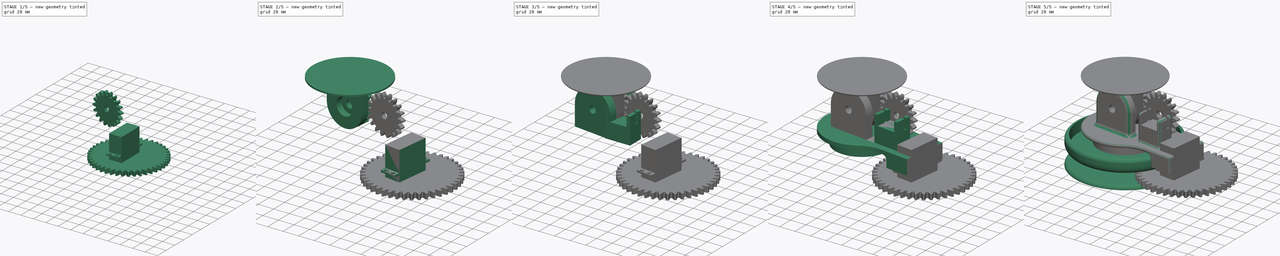
[diagram: build sequence overview — one tinted view per stage of 5, left to right]
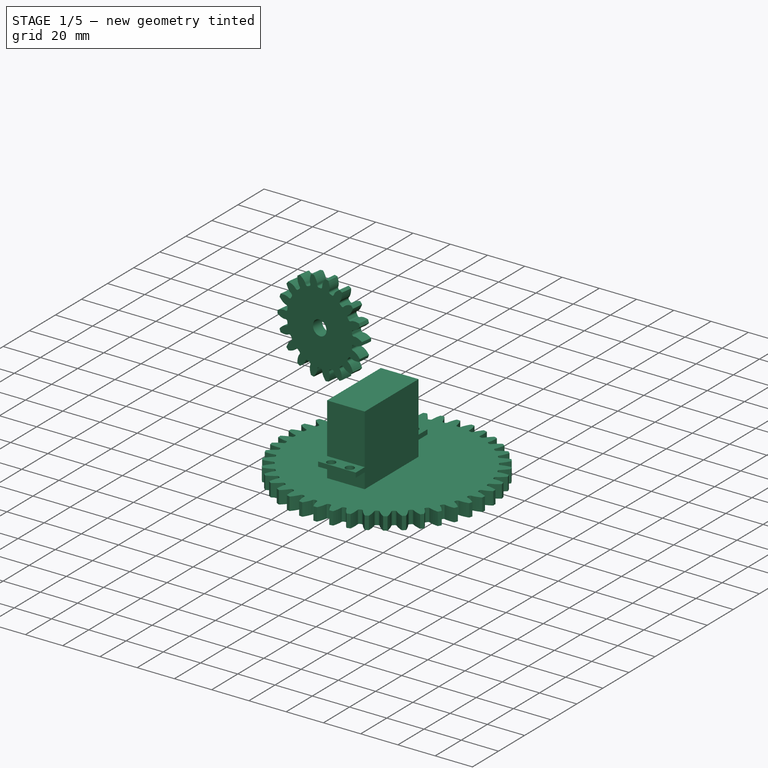
[diagram: stage 1 of 5 — iso view after this stage's code; geometry added in this stage tinted green]
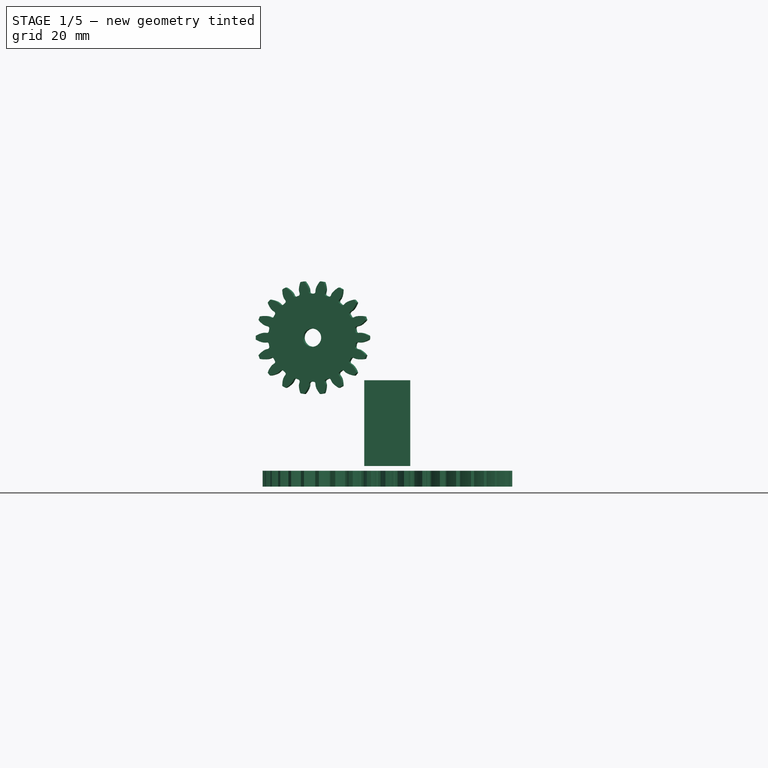
[diagram: stage 1 of 5 — front view after this stage's code; geometry added in this stage tinted green]
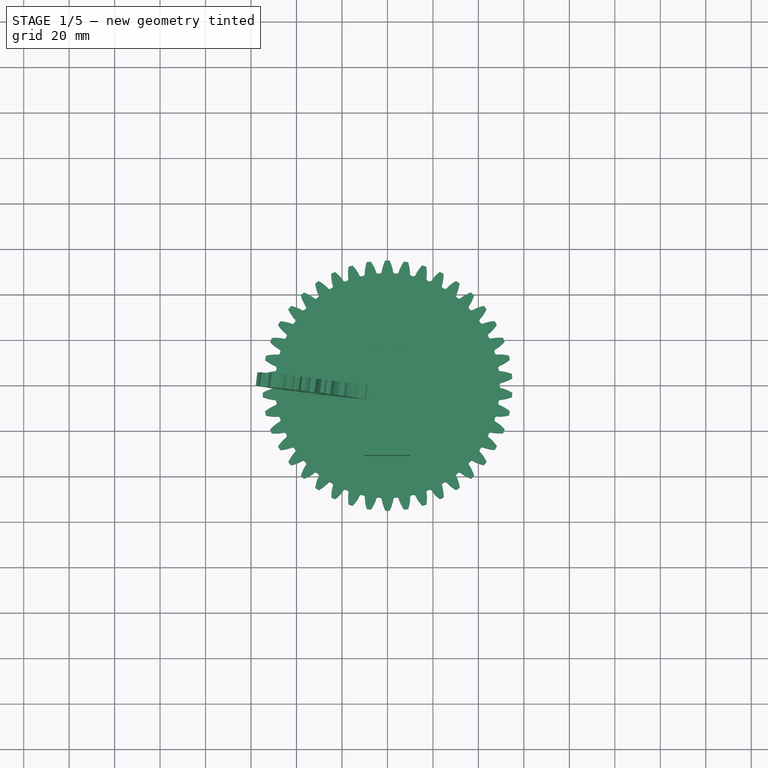
[diagram: stage 1 of 5 — top view after this stage's code; geometry added in this stage tinted green]
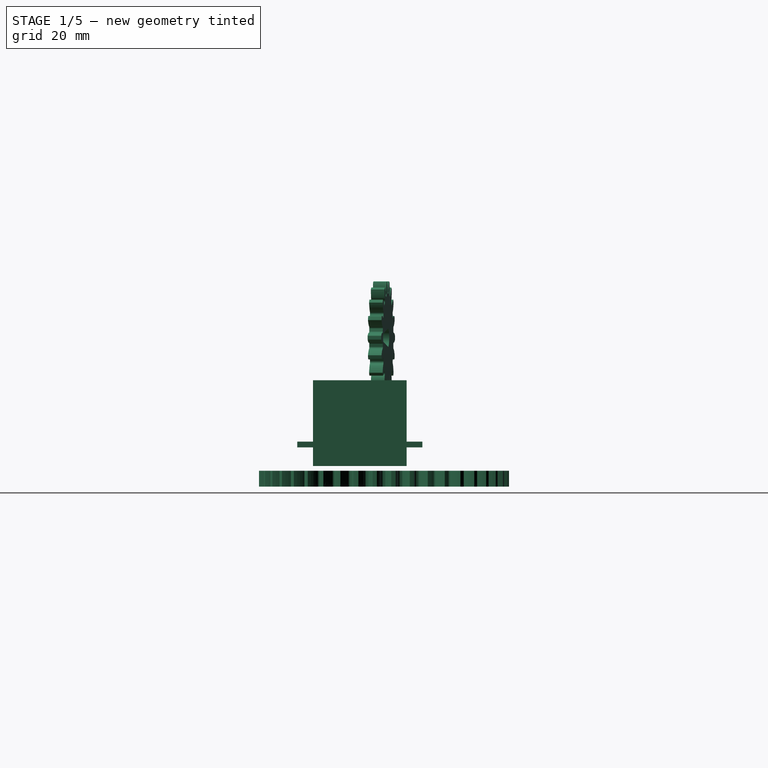
[diagram: stage 1 of 5 — right view after this stage's code; geometry added in this stage tinted green]
FCSTD DOCUMENT  (FreeCAD 0.18R14555 (Git shallow))
Label: system3
License: All rights reserved
LicenseURL: http://en.wikipedia.org/wiki/All_rights_reserved
objects: Part::Cylinder×15, Part::MultiFuse×11, PartDesign::Fillet×11, Part::Box×10, Part::Cut×8, Part::Extrusion×7, Part::Part2DObjectPython×4, Sketcher::SketchObject×4, PartDesign::FeatureBase×3, PartDesign::Body×3, App::DocumentObjectGroup×3, Part::Revolution×1, Part::FeaturePython×1, Part::Feature×1, Part::Mirroring×1, PartDesign::Boolean×1
note: 81 computed .brp shape members not serialized (recipe doc carries the construction recipe); baked Part::Feature solids carry a one-line shape summary decoded from their .brp

FEATURE [Part::Part2DObjectPython] InvoluteGear003  # Draft 2D object (typed FeaturePython)
  ExternalGear = true
  HighPrecision = true
  Modules = 2.5
  NumberOfTeeth = 42
  PressureAngle = 20
FEATURE [Part::Extrusion] Extrude001
  Base = -> InvoluteGear003
  Dir = (0,0,1)
  DirMode = 2
  FaceMakerClass = Part::FaceMakerBullseye
  LengthFwd = 7
  LengthRev = 0
  Placement = pos=(79.5,0,38) rot=(0,0,1;0.074176rad)
  Solid = true
  Symmetric = false
FEATURE [Part::Cylinder] Cylinder008
  Angle = 360
  AttacherType = Attacher::AttachEngine3D
  Height = 10
  Placement = pos=(79.5,0,36.5) rot=(0,0,1;0rad)
  Radius = 5
FEATURE [Sketcher::SketchObject] Sketch001
  MapMode = 5
  Placement = pos=(79.5,9e-16,45) rot=(0,0,1;0.074176rad)
  Support = -> [Extrude001]
  sketch-geometry (4):
    g0: LineSegment StartX=3.71406e-11 StartY=-7 StartZ=0 EndX=30 EndY=-3.5 EndZ=0
    g1: LineSegment StartX=3.71438e-11 StartY=7 StartZ=0 EndX=30 EndY=3.5 EndZ=0
    g2: ArcOfCircle CenterX=0 CenterY=0 CenterZ=0 NormalX=0 NormalY=0 NormalZ=1 AngleXU=0 Radius=7 StartAngle=1.5708 EndAngle=4.71239
    g3: ArcOfCircle CenterX=30 CenterY=0 CenterZ=0 NormalX=0 NormalY=0 NormalZ=1 AngleXU=0 Radius=3.5 StartAngle=4.71239 EndAngle=7.85398
  constraints (13):
    c: Coincident(g2,g-1)
    c: Coincident(g2,g0)
    c: Coincident(g2,g1)
    c: PointOnObject(g3,g-1)
    c: Coincident(g3,g1)
    c: Coincident(g3,g0)
    c: DistanceX(g3,g0) = 0
    c: DistanceX(g1,g3) = 0
    c: DistanceX(g2,g1) = 0
    c: DistanceX(g2,g0) = 0
    c: DistanceY(g0,g1) = 14
    c: DistanceY(g0,g1) = 7
    c: DistanceX(g2,g3) = 30
FEATURE [Part::Cut] Cut001
  Base = -> Extrude001
  Refine = true
  Tool = -> Cylinder008
FEATURE [Part::Extrusion] Extrude002
  Base = -> Sketch001
  Dir = (0,0,1)
  DirMode = 2
  FaceMakerClass = Part::FaceMakerBullseye
  LengthFwd = -3
  LengthRev = 0
  Solid = true
  Symmetric = false
FEATURE [Part::Cut] Cut002  label="Pan_Gear"
  Base = -> Cut001
  Placement = pos=(0.5,0,35.5) rot=(1,0,0;3.14159rad)
  Refine = true
  Tool = -> Extrude002
FEATURE [Part::Cylinder] Cylinder003
  Angle = 360
  AttacherType = Attacher::AttachEngine3D
  Height = 10
  Placement = pos=(0,0,0) rot=(1,0,0;1.5708rad)
  Radius = 2.25
FEATURE [Sketcher::SketchObject] Sketch002
  sketch-geometry (12):
    g0: LineSegment StartX=-59.136 StartY=19.2217 StartZ=0 EndX=-52.236 EndY=19.2217 EndZ=0
    g1: LineSegment StartX=-52.236 StartY=19.2217 StartZ=0 EndX=-52.236 EndY=27.4217 EndZ=0
    g2: LineSegment StartX=-52.236 StartY=27.4217 StartZ=0 EndX=-11.036 EndY=27.4217 EndZ=0
    g3: LineSegment StartX=-11.036 StartY=27.4217 StartZ=0 EndX=-11.036 EndY=19.2217 EndZ=0
    g4: LineSegment StartX=-11.036 StartY=19.2217 StartZ=0 EndX=-4.13598 EndY=19.2217 EndZ=0
    g5: LineSegment StartX=-4.13598 StartY=19.2217 StartZ=0 EndX=-4.13598 EndY=16.7217 EndZ=0
    g6: LineSegment StartX=-4.13598 StartY=16.7217 StartZ=0 EndX=-11.036 EndY=16.7217 EndZ=0
    g7: LineSegment StartX=-11.036 StartY=16.7217 StartZ=0 EndX=-11.036 EndY=-10.2783 EndZ=0
    g8: LineSegment StartX=-11.036 StartY=-10.2783 StartZ=0 EndX=-52.236 EndY=-10.2783 EndZ=0
    g9: LineSegment StartX=-52.236 StartY=-10.2783 StartZ=0 EndX=-52.236 EndY=16.7217 EndZ=0
    g10: LineSegment StartX=-52.236 StartY=16.7217 StartZ=0 EndX=-59.136 EndY=16.7217 EndZ=0
    g11: LineSegment StartX=-59.136 StartY=16.7217 StartZ=0 EndX=-59.136 EndY=19.2217 EndZ=0
  constraints (34):
    c: Horizontal(g0)
    c: Coincident(g0,g1)
    c: Vertical(g1)
    c: Coincident(g1,g2)
    c: Horizontal(g2)
    c: Coincident(g2,g3)
    c: Vertical(g3)
    c: Coincident(g3,g4)
    c: Horizontal(g4)
    c: Coincident(g4,g5)
    c: Vertical(g5)
    c: Coincident(g5,g6)
    c: Coincident(g6,g7)
    c: Vertical(g7)
    c: Coincident(g7,g8)
    c: Coincident(g8,g9)
    c: Coincident(g9,g10)
    c: Horizontal(g10)
    c: Coincident(g10,g11)
    c: Coincident(g11,g0)
    c: Vertical(g11)
    c: Horizontal(g6)
    c: Equal(g0,g10)
    c: Equal(g10,g4)
    c: Equal(g4,g6)
    c: Equal(g5,g11)
    c: Equal(g1,g3)
    c: Equal(g9,g7)
    c: Equal(g2,g8)
    c: DistanceX(g0,g4) = 55
    c: DistanceY(g7,g7) = 27
    c: DistanceY(g5,g5) = 2.5
    c: DistanceY(g7,g2) = 37.7
    c: DistanceX(g8,g8) = 41.2
FEATURE [Part::FeaturePython] Array  # Draft array (typed FeaturePython)
  Angle = 360
  ArrayType = 0
  Axis = (0,0,1)
  Base = -> Cylinder003
  Center = (0,0,0)
  Fuse = false
  IntervalAxis = (0,0,0)
  IntervalX = (49.5,0,0)
  IntervalY = (0,0,0)
  IntervalZ = (0,0,10)
  NumberPolar = 1
  NumberX = 2
  NumberY = 1
  NumberZ = 2
  Placement = pos=(-56.5,22,5) rot=(0,0,1;0rad)
FEATURE [Part::Extrusion] Extrude003
  Base = -> Sketch002
  Dir = (0,0,1)
  DirMode = 2
  FaceMakerClass = Part::FaceMakerBullseye
  LengthFwd = 20.2
  LengthRev = 0
  Solid = true
  Symmetric = false
FEATURE [Part::Cut] Cut004  label="Servo"
  Base = -> Extrude003
  Placement = pos=(90,21,27) rot=(0.57735,0.57735,-0.57735;4.18879rad)
  Refine = true
  Tool = -> Array
FEATURE [Part::Part2DObjectPython] InvoluteGear005  # Draft 2D object (typed FeaturePython)
  ExternalGear = true
  HighPrecision = true
  Modules = 2.5
  NumberOfTeeth = 18
  Placement = pos=(26,4,56) rot=(1,0,0;1.5708rad)
  PressureAngle = 20
FEATURE [Part::Extrusion] Extrude008
  Base = -> InvoluteGear005
  Dir = (0,-1,2e-16)
  DirMode = 2
  FaceMakerClass = Part::FaceMakerBullseye
  LengthFwd = 6
  LengthRev = 0
  Solid = true
  Symmetric = false
FEATURE [Part::Cylinder] Cylinder019
  Angle = 360
  AttacherType = Attacher::AttachEngine3D
  Height = 6
  Placement = pos=(26,4,56) rot=(1,0,0;1.5708rad)
  Radius = 4
FEATURE [Sketcher::SketchObject] Sketch004
  MapMode = 5
  Placement = pos=(26,4,56) rot=(-1,0,0;1.5708rad)
  Support = -> [Cylinder019]
  sketch-geometry (4):
    g0: LineSegment StartX=2e-16 StartY=4 StartZ=0 EndX=16 EndY=2 EndZ=0
    g1: LineSegment StartX=16 StartY=-2 StartZ=0 EndX=0 EndY=-4 EndZ=0
    g2: ArcOfCircle CenterX=16 CenterY=0 CenterZ=0 NormalX=0 NormalY=0 NormalZ=1 AngleXU=0 Radius=2 StartAngle=4.71239 EndAngle=7.85398
    g3: ArcOfCircle CenterX=0 CenterY=0 CenterZ=0 NormalX=0 NormalY=0 NormalZ=1 AngleXU=0 Radius=4 StartAngle=1.5708 EndAngle=4.71239
  constraints (13):
    c: Coincident(g2,g0)
    c: Coincident(g2,g1)
    c: Diameter(g2) = 4
    c: DistanceX(g0,g2) = 0
    c: DistanceX(g2,g1) = 0
    c: Coincident(g3,g-1)
    c: PointOnObject(g3,g-2)
    c: PointOnObject(g3,g-2)
    c: Diameter(g3) = 8
    c: Coincident(g0,g3)
    c: Coincident(g3,g1)
    c: DistanceX(g3,g2) = 16
    c: PointOnObject(g2,g-1)
FEATURE [Part::Extrusion] Extrude007
  Base = -> Sketch004
  Dir = (0,1,-2e-16)
  DirMode = 2
  FaceMakerClass = Part::FaceMakerBullseye
  LengthFwd = -3
  LengthRev = 0
  Solid = true
  Symmetric = false
FEATURE [Part::MultiFuse] Fusion008
  Refine = true
  Shapes = -> [Cylinder019,Extrude007]
FEATURE [Part::Cut] Cut009  label="Tilt_Gear"
  Base = -> Extrude008
  Placement = pos=(21.3,1,0) rot=(0,0,-1;0.122173rad)
  Refine = true
  Tool = -> Fusion008
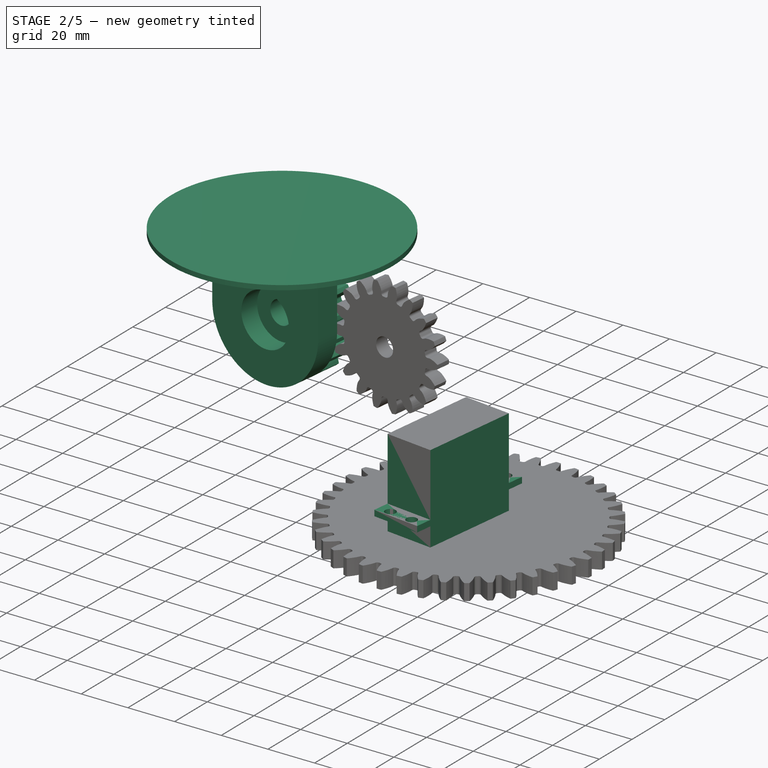
[diagram: stage 2 of 5 — iso view after this stage's code; geometry added in this stage tinted green]
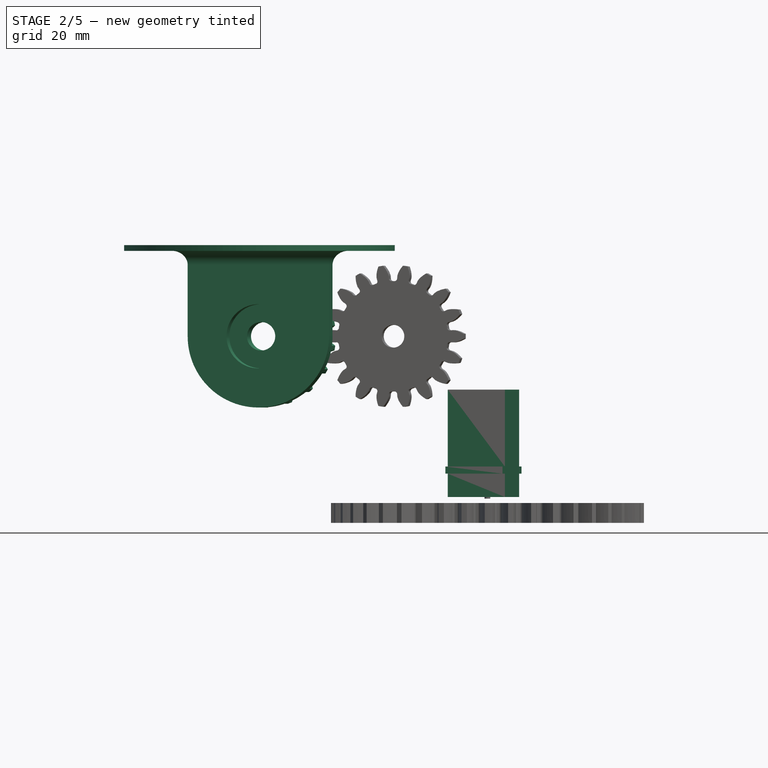
[diagram: stage 2 of 5 — front view after this stage's code; geometry added in this stage tinted green]
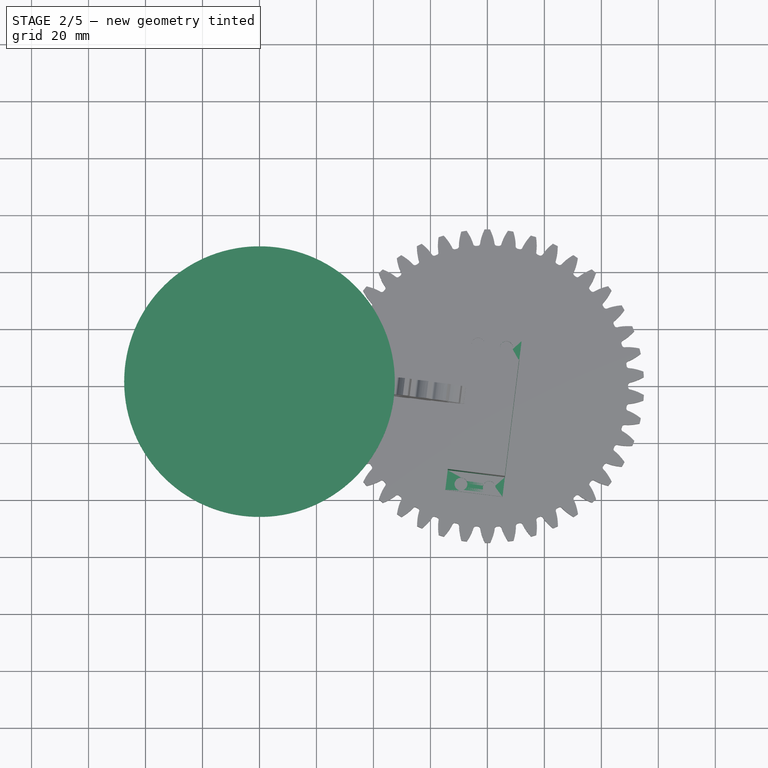
[diagram: stage 2 of 5 — top view after this stage's code; geometry added in this stage tinted green]
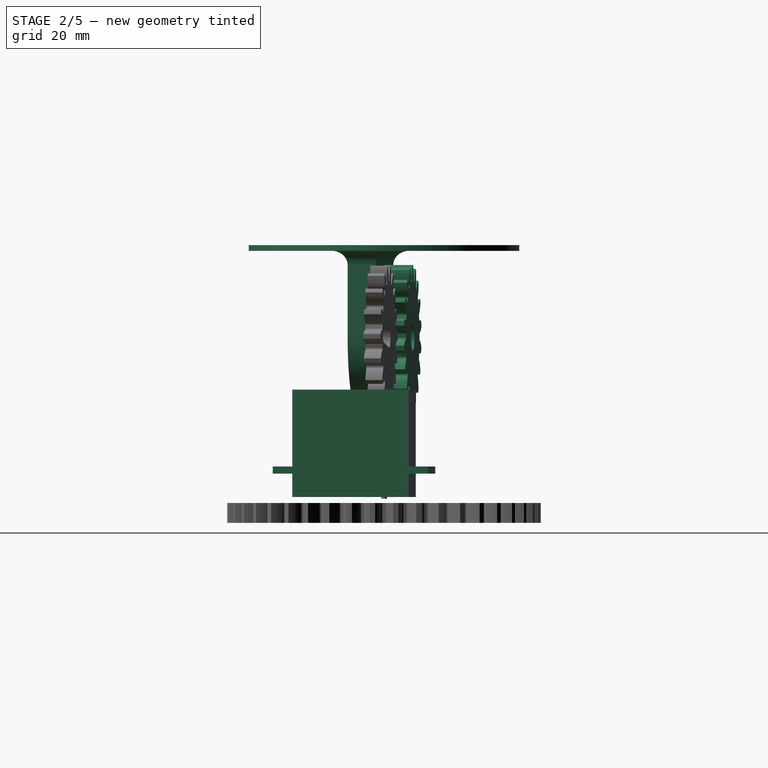
[diagram: stage 2 of 5 — right view after this stage's code; geometry added in this stage tinted green]
FEATURE [PartDesign::Body] Body  label="Base_Body"
  BaseFeature = -> Fusion001
  Group = -> [BaseFeature,Fillet,Fillet001,Fillet002]
  Origin = -> Origin
  Tip = -> Fillet002
FEATURE [Part::Cylinder] Cylinder011
  Angle = 360
  AttacherType = Attacher::AttachEngine3D
  Height = 1
  Placement = pos=(80,0,-1) rot=(0,0,1;0rad)
  Radius = 1
FEATURE [Part::MultiFuse] Fusion002  label="Servo_Pan"
  Placement = pos=(0.6,9.75,0) rot=(0,0,-1;0.122173rad)
  Refine = true
  Shapes = -> [Cut004,Cylinder011]
FEATURE [Part::Part2DObjectPython] InvoluteGear004  # Draft 2D object (typed FeaturePython)
  ExternalGear = true
  HighPrecision = true
  Modules = 2.5
  NumberOfTeeth = 18
  Placement = pos=(26,4,56) rot=(1,0,0;1.5708rad)
  PressureAngle = 20
FEATURE [Part::Extrusion] Extrude006
  Base = -> InvoluteGear004
  Dir = (0,-1,2e-16)
  DirMode = 2
  FaceMakerClass = Part::FaceMakerBullseye
  LengthFwd = 10
  LengthRev = 0
  Placement = pos=(-13.75,8,-3.8) rot=(-0.050849,-0.831372,-0.553385;0.220156rad)
  Solid = true
  Symmetric = false
FEATURE [Part::Cylinder] Cylinder020
  Angle = 360
  AttacherType = Attacher::AttachEngine3D
  Height = 22
  Placement = pos=(2.1,11,56) rot=(0.99628,-0.060935,-0.060935;1.57452rad)
  Radius = 5
FEATURE [Part::Cylinder] Cylinder021
  Angle = 180
  AttacherType = Attacher::AttachEngine3D
  Height = 10
  Placement = pos=(0.824382,0.198572,56.0001) rot=(-0.043208,-0.706446,0.706446;3.05523rad)
  Radius = 25
FEATURE [Part::Box] Box014  label="Cube014"
  AttacherType = Attacher::AttachEngine3D
  Height = 30
  Length = 50
  Placement = pos=(-25.208,-6.68022,56) rot=(0,0,-1;0.122173rad)
  Width = 10
FEATURE [Part::Cylinder] Cylinder022
  Angle = 360
  AttacherType = Attacher::AttachEngine3D
  Height = 9
  Placement = pos=(0.6,-1.5,56) rot=(0.99628,-0.060935,-0.060935;1.57452rad)
  Radius = 11.25
FEATURE [Part::MultiFuse] Fusion012
  Refine = true
  Shapes = -> [Cylinder022,Cylinder020]
FEATURE [Part::MultiFuse] Fusion013
  Refine = true
  Shapes = -> [Box014,Extrude006,Cylinder021]
FEATURE [PartDesign::Body] Body001  label="Middle_Body"
  BaseFeature = -> Fusion016
  Group = -> [BaseFeature001,Fillet003,Fillet004,Fillet005,Fillet006,Fillet007,Fillet008,Boolean]
  Origin = -> Origin001
  Tip = -> Boolean
FEATURE [Part::Cut] Cut010
  Base = -> Fusion013
  Refine = true
  Tool = -> Fusion012
FEATURE [Part::Cylinder] Cylinder023
  Angle = 360
  AttacherType = Attacher::AttachEngine3D
  Height = 2
  Placement = pos=(0,0,86) rot=(0,0,1;0rad)
  Radius = 47.5
FEATURE [Part::MultiFuse] Fusion017  label="Top"
  Refine = true
  Shapes = -> [Cut010,Cylinder023]
FEATURE [PartDesign::FeatureBase] BaseFeature002
  BaseFeature = -> Fusion017
FEATURE [PartDesign::Fillet] Fillet009
  Base = -> BaseFeature002 [Edge7,Edge6,Edge5,Edge4]
  BaseFeature = -> BaseFeature002
  Radius = 4.99
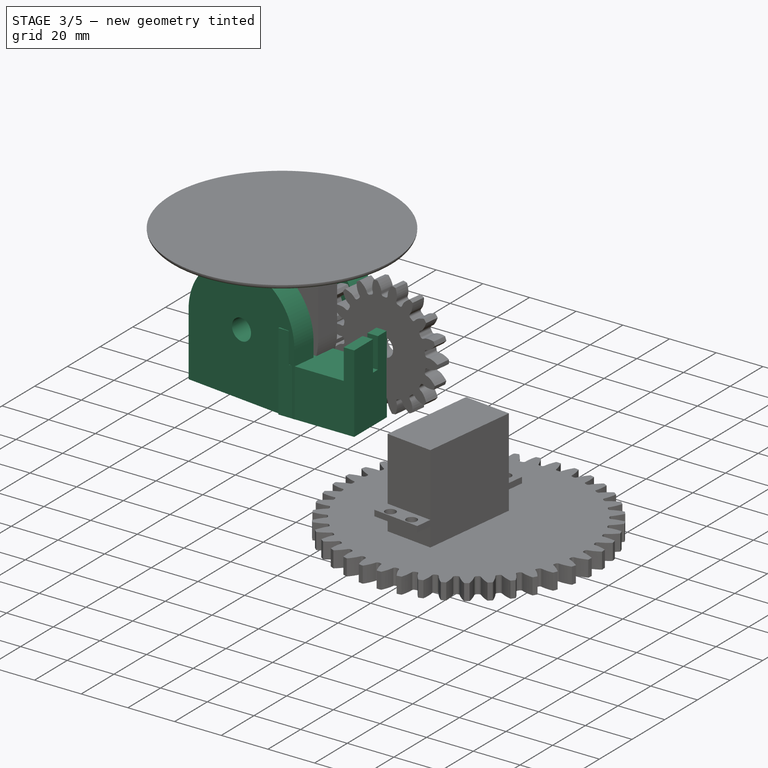
[diagram: stage 3 of 5 — iso view after this stage's code; geometry added in this stage tinted green]
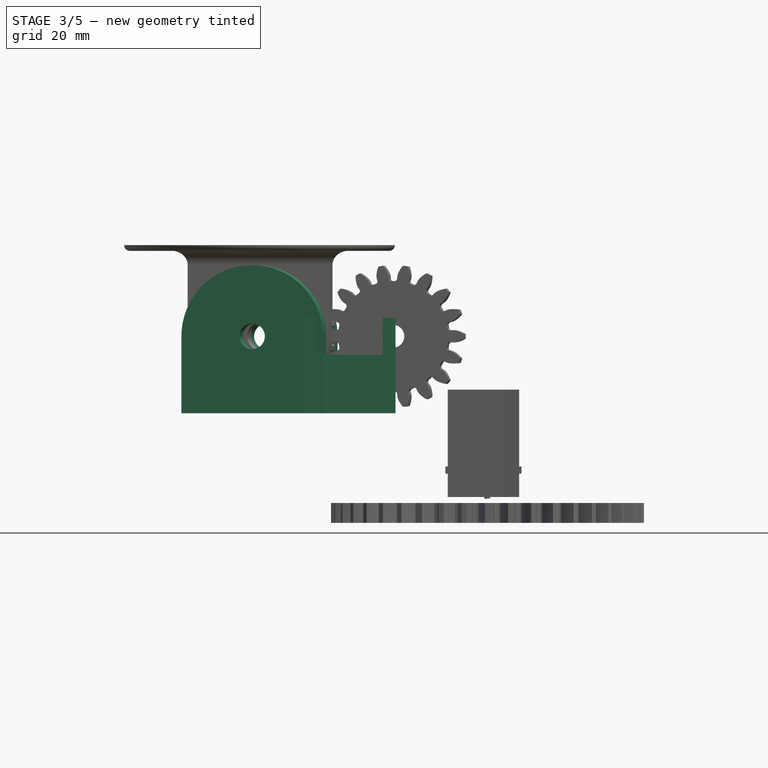
[diagram: stage 3 of 5 — front view after this stage's code; geometry added in this stage tinted green]
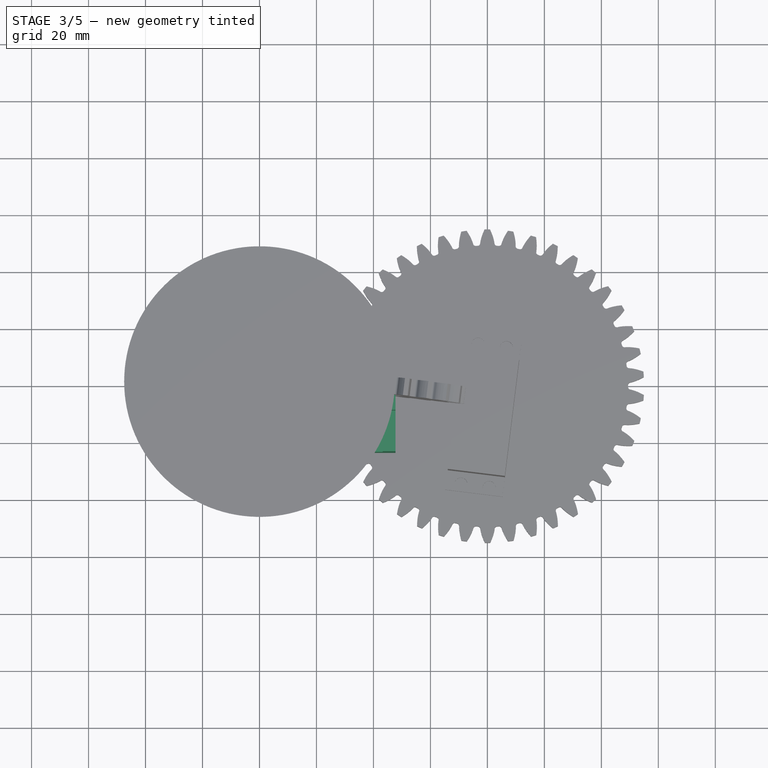
[diagram: stage 3 of 5 — top view after this stage's code; geometry added in this stage tinted green]
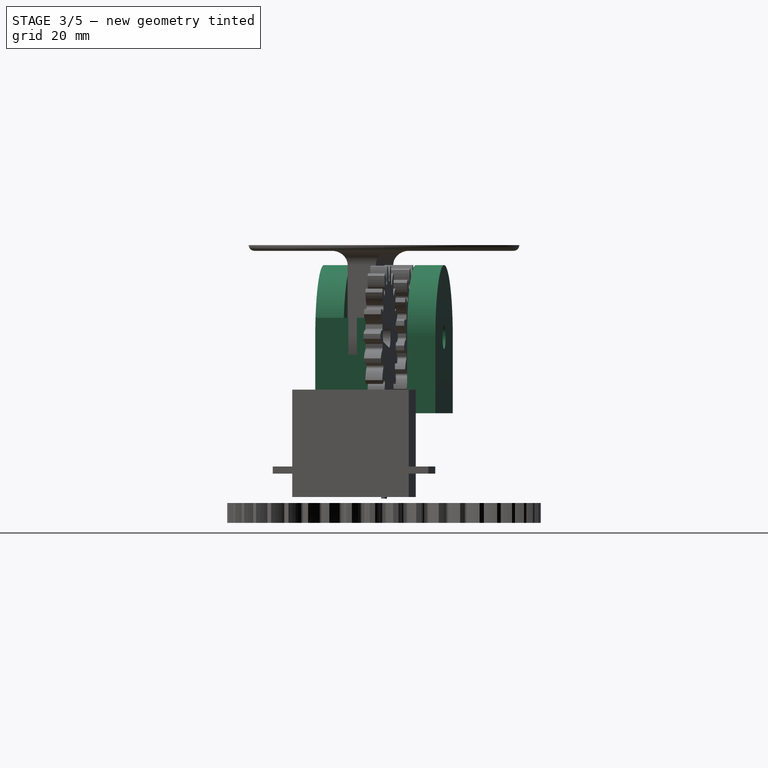
[diagram: stage 3 of 5 — right view after this stage's code; geometry added in this stage tinted green]
FEATURE [Part::Box] Box  label="Cube"
  AttacherType = Attacher::AttachEngine3D
  Height = 27
  Length = 50
  Placement = pos=(-25,-10,29) rot=(0,0,1;0rad)
  Width = 10
FEATURE [Part::Cylinder] Cylinder014
  Angle = 360
  AttacherType = Attacher::AttachEngine3D
  Height = 10
  Placement = pos=(0,0,56) rot=(1,0,0;1.5708rad)
  Radius = 25
FEATURE [Part::Cylinder] Cylinder015
  Angle = 360
  AttacherType = Attacher::AttachEngine3D
  Height = 10
  Placement = pos=(0,0,56) rot=(1,0,0;1.5708rad)
  Radius = 4.5
FEATURE [Part::MultiFuse] Fusion004
  Refine = true
  Shapes = -> [Cylinder014,Box]
FEATURE [Part::Box] Box009  label="Cube009"
  AttacherType = Attacher::AttachEngine3D
  Height = 13
  Length = 4.5
  Placement = pos=(15.25,-9.5,49.5) rot=(0,0,1;0rad)
  Width = 5.5
FEATURE [Part::Feature] Part__Feature002  label="Servo_Tilt"
  Placement = pos=(37.07,-32.21,49.7) rot=(-0.99628,0.060935,-0.060935;1.57452rad)
  shape: bbox 32.85 x 33.61 x 12.6 mm, 46 faces (baked)
FEATURE [Part::Box] Box010  label="Cube010"
  AttacherType = Attacher::AttachEngine3D
  Height = 13
  Length = 4.5
  Placement = pos=(15.25,-24,49.5) rot=(0,0,1;0rad)
  Width = 11.5
FEATURE [Part::Box] Box011  label="Cube011"
  AttacherType = Attacher::AttachEngine3D
  Height = 13
  Length = 4.5
  Placement = pos=(43.25,-9.5,49.5) rot=(0,0,1;0rad)
  Width = 5.5
FEATURE [Part::Box] Box012  label="Cube012"
  AttacherType = Attacher::AttachEngine3D
  Height = 13
  Length = 4.5
  Placement = pos=(43.25,-24,49.5) rot=(0,0,1;0rad)
  Width = 11.5
FEATURE [Part::Box] Box013  label="Cube013"
  AttacherType = Attacher::AttachEngine3D
  Height = 20.5
  Length = 32.5
  Placement = pos=(15.25,-24,29) rot=(0,0,1;0rad)
  Width = 20
FEATURE [Part::Cut] Cut
  Base = -> Fusion004
  Placement = pos=(0,-11.25,0) rot=(0,0,1;0rad)
  Refine = true
  Tool = -> Cylinder015
FEATURE [Part::Mirroring] Part__Mirroring  label="Cut (Mirror #1)"
  Base = (0,0,0)
  Normal = (0,1,0)
  Source = -> Cut
FEATURE [Part::MultiFuse] Fusion015
  Placement = pos=(0,0,0) rot=(0,0,-1;0.122173rad)
  Refine = true
  Shapes = -> [Part__Mirroring,Cut]
FEATURE [PartDesign::Fillet] Fillet010
  Base = -> Fillet009 [Edge5]
  BaseFeature = -> Fillet009
  Radius = 1.99
FEATURE [PartDesign::Body] Body002  label="Top_Body"
  BaseFeature = -> Fusion017
  Group = -> [BaseFeature002,Fillet009,Fillet010]
  Origin = -> Origin002
  Tip = -> Fillet010
FEATURE [App::DocumentObjectGroup] Group  label="Motors"
  Group = -> [Fusion002,Part__Feature002]
FEATURE [App::DocumentObjectGroup] Group001  label="Gears"
  Group = -> [Cut009,Cut002]
FEATURE [App::DocumentObjectGroup] Group002  label="Body"
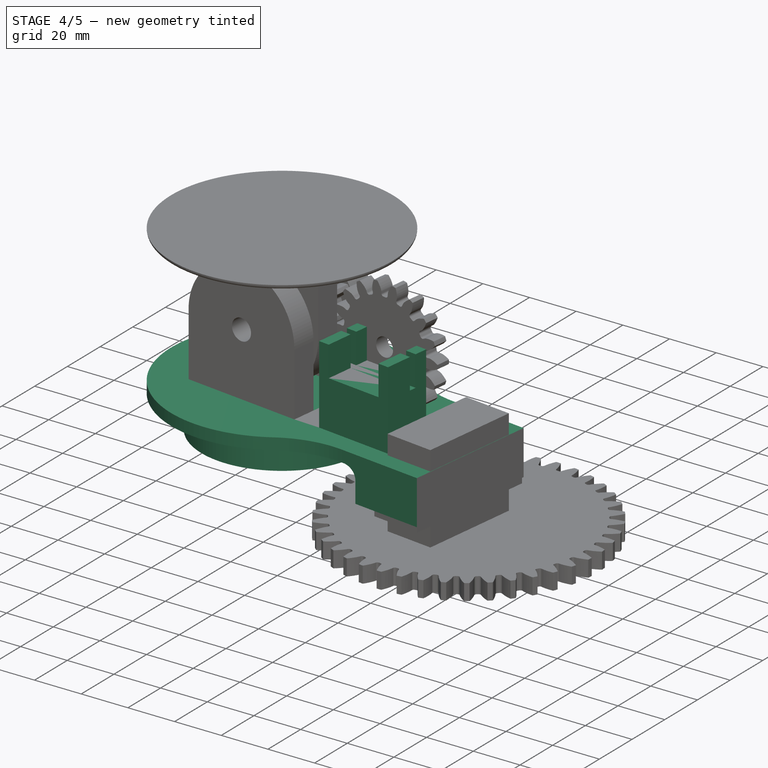
[diagram: stage 4 of 5 — iso view after this stage's code; geometry added in this stage tinted green]
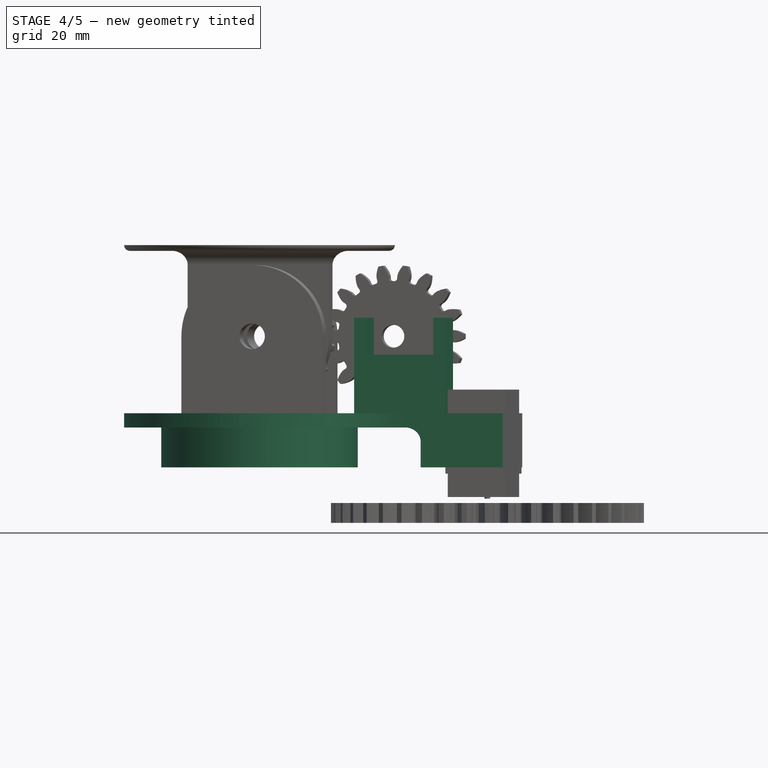
[diagram: stage 4 of 5 — front view after this stage's code; geometry added in this stage tinted green]
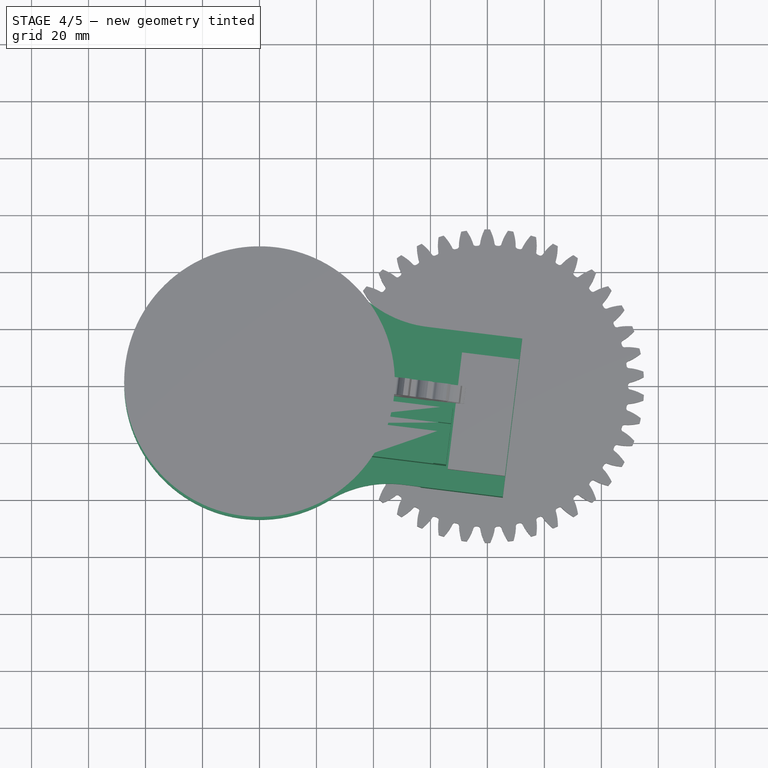
[diagram: stage 4 of 5 — top view after this stage's code; geometry added in this stage tinted green]
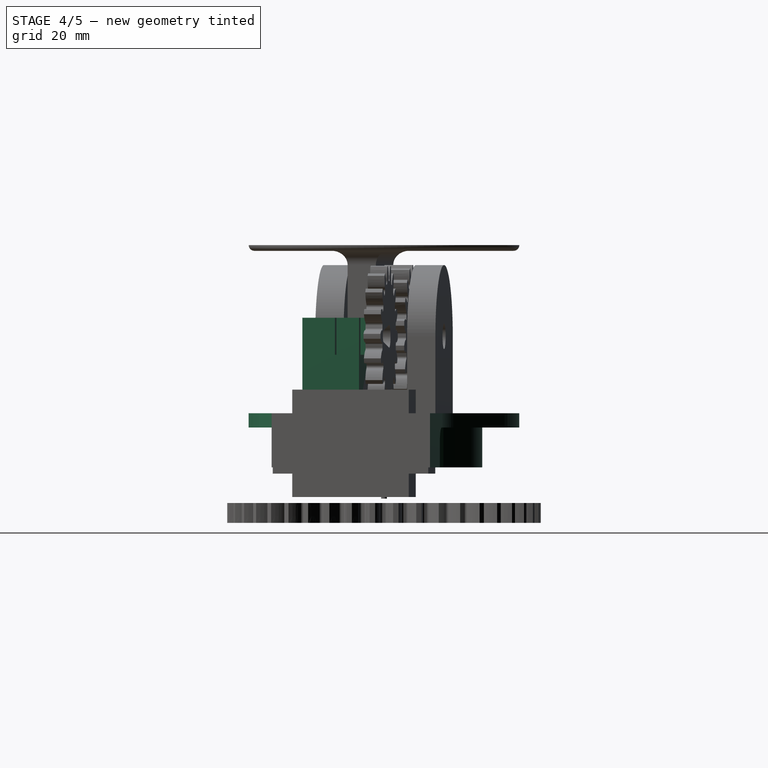
[diagram: stage 4 of 5 — right view after this stage's code; geometry added in this stage tinted green]
FEATURE [Part::Cylinder] Cylinder009
  Angle = 360
  AttacherType = Attacher::AttachEngine3D
  Height = 14
  Placement = pos=(0,0,10) rot=(0,0,1;0rad)
  Radius = 34.5
FEATURE [Part::Cylinder] Cylinder010
  Angle = 360
  AttacherType = Attacher::AttachEngine3D
  Height = 5
  Placement = pos=(0,0,24) rot=(0,0,1;0rad)
  Radius = 47.5
FEATURE [Part::Cylinder] Cylinder005
  Angle = 360
  AttacherType = Attacher::AttachEngine3D
  Height = 15
  Placement = pos=(0,0,9) rot=(0,0,1;0rad)
  Radius = 29
FEATURE [Part::Box] Box001  label="Cube001"
  AttacherType = Attacher::AttachEngine3D
  Height = 5
  Length = 52.8
  Placement = pos=(33,-33,24) rot=(0,0,-1;0.122173rad)
  Width = 56
FEATURE [Part::Box] Box003  label="Cube003"
  AttacherType = Attacher::AttachEngine3D
  Height = 14
  Length = 30
  Placement = pos=(55.6301,-35.7786,10) rot=(0,0,-1;0.122173rad)
  Width = 56
FEATURE [Part::Cylinder] Cylinder013
  Angle = 360
  AttacherType = Attacher::AttachEngine3D
  Height = 24
  Radius = 67
FEATURE [Part::Cut] Cut005
  Base = -> Box003
  Refine = true
  Tool = -> Cylinder013
FEATURE [Part::Cut] Cut006
  Base = -> Cylinder009
  Refine = true
  Tool = -> Cylinder005
FEATURE [Part::MultiFuse] Fusion
  Refine = true
  Shapes = -> [Cut005,Box001,Cylinder010,Cut006]
FEATURE [Part::MultiFuse] Fusion009
  Placement = pos=(21,1,0) rot=(0,0,-1;0.122173rad)
  Refine = true
  Shapes = -> [Box010,Box009,Box011,Box012,Box013]
FEATURE [Part::MultiFuse] Fusion016  label="Middle"
  Refine = true
  Shapes = -> [Fusion,Fusion009,Fusion015]
FEATURE [PartDesign::FeatureBase] BaseFeature001
  BaseFeature = -> Fusion016
FEATURE [PartDesign::Fillet] Fillet003
  Base = -> BaseFeature001 [Edge14,Edge9]
  BaseFeature = -> BaseFeature001
  Radius = 40
FEATURE [PartDesign::Fillet] Fillet004
  Base = -> Fillet003 [Edge12]
  BaseFeature = -> Fillet003
  Radius = 5
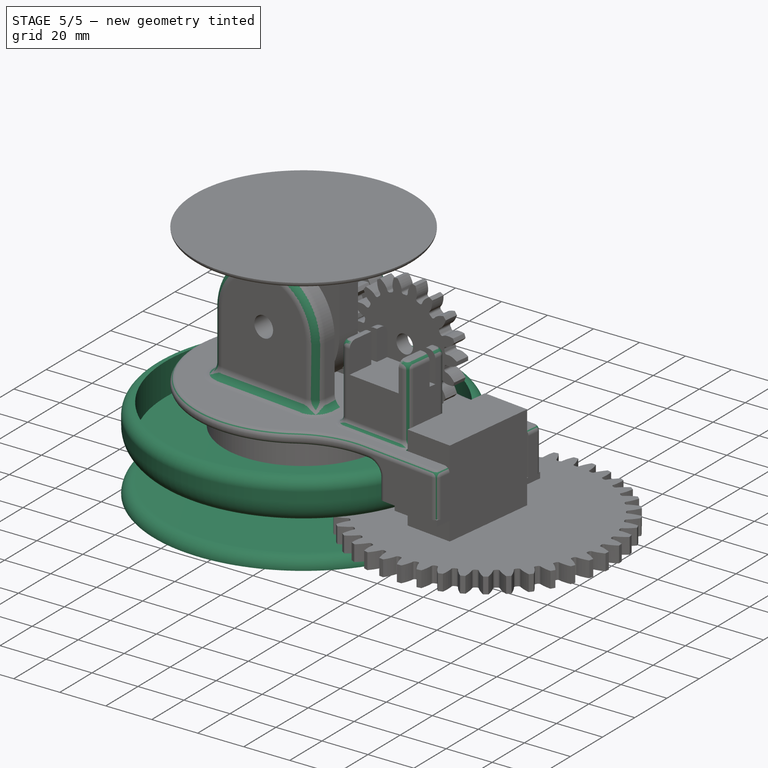
[diagram: stage 5 of 5 — iso view after this stage's code; geometry added in this stage tinted green]
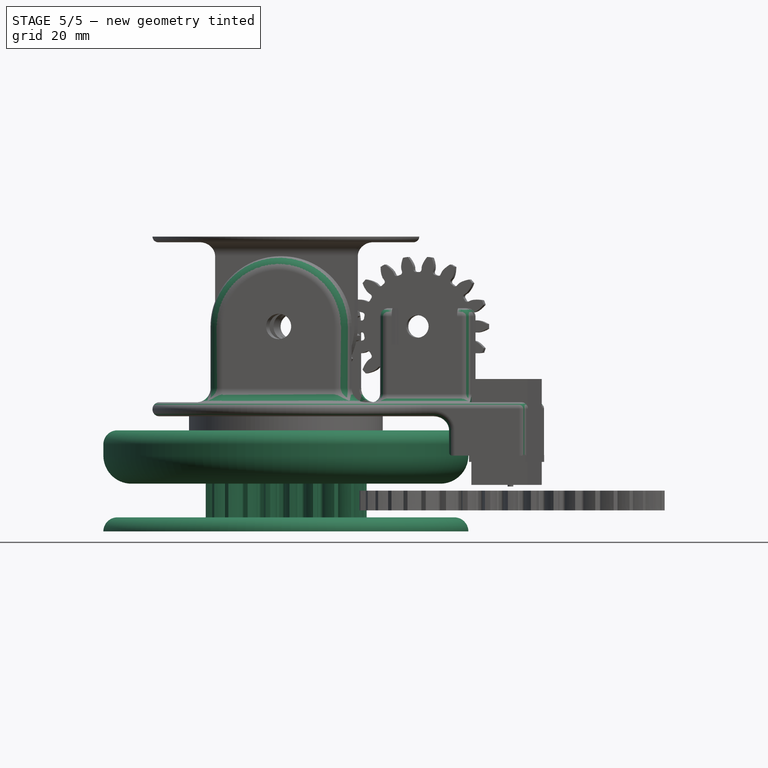
[diagram: stage 5 of 5 — front view after this stage's code; geometry added in this stage tinted green]
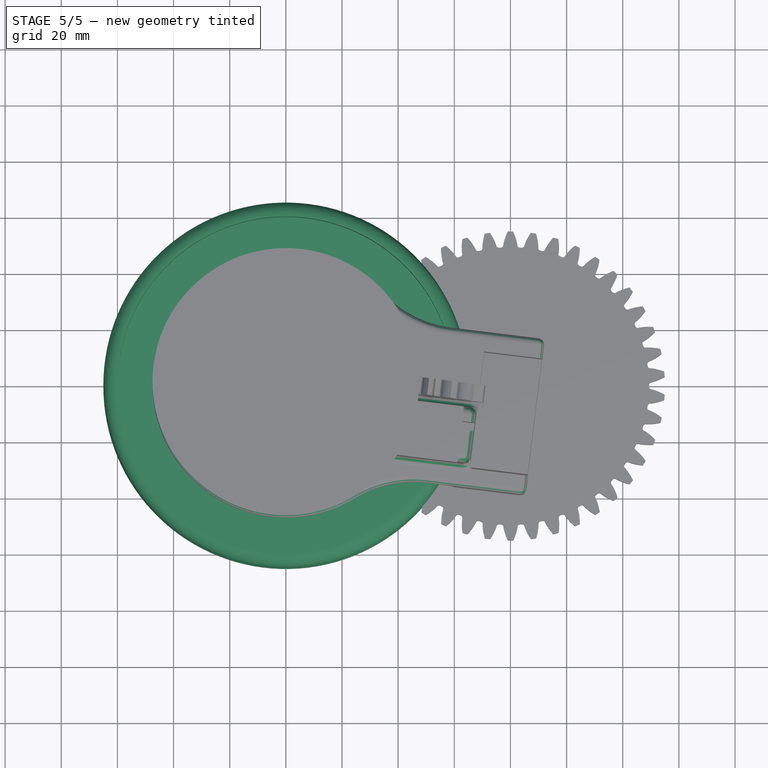
[diagram: stage 5 of 5 — top view after this stage's code; geometry added in this stage tinted green]
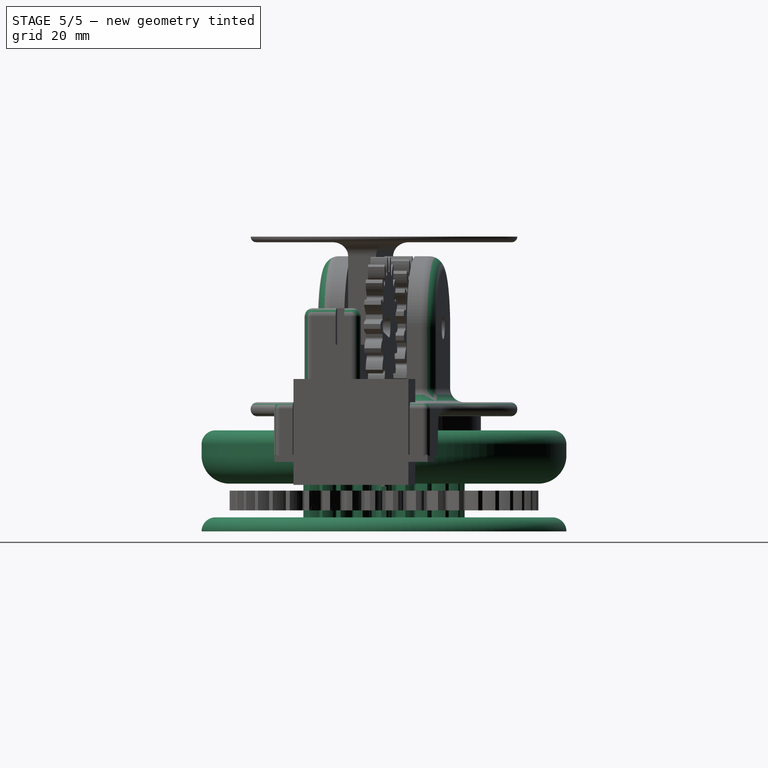
[diagram: stage 5 of 5 — right view after this stage's code; geometry added in this stage tinted green]
FEATURE [Part::Cylinder] Cylinder002
  Angle = 360
  AttacherType = Attacher::AttachEngine3D
  Height = 5
  Placement = pos=(0,0,-17) rot=(0,0,1;0rad)
  Radius = 65
FEATURE [Part::Part2DObjectPython] InvoluteGear002  # Draft 2D object (typed FeaturePython)
  ExternalGear = true
  HighPrecision = true
  Modules = 2.5
  NumberOfTeeth = 21
  PressureAngle = 20
FEATURE [Part::Extrusion] Extrude
  Base = -> InvoluteGear002
  Dir = (0,0,1)
  DirMode = 2
  FaceMakerClass = Part::FaceMakerBullseye
  LengthFwd = 12
  LengthRev = 0
  Placement = pos=(0,0,-12) rot=(0,0,1;0rad)
  Solid = true
  Symmetric = false
FEATURE [Sketcher::SketchObject] Sketch
  Placement = pos=(0,0,0) rot=(1,0,0;1.5708rad)
  sketch-geometry (6):
    g0: LineSegment StartX=0 StartY=5 StartZ=0 EndX=-60 EndY=5 EndZ=0
    g1: LineSegment StartX=-60 StartY=5 StartZ=0 EndX=-60 EndY=19 EndZ=0
    g2: LineSegment StartX=-60 StartY=19 StartZ=0 EndX=-65 EndY=19 EndZ=0
    g3: LineSegment StartX=-65 StartY=19 StartZ=0 EndX=-65 EndY=0 EndZ=0
    g4: LineSegment StartX=-65 StartY=0 StartZ=0 EndX=0 EndY=0 EndZ=0
    g5: LineSegment StartX=0 StartY=5 StartZ=0 EndX=0 EndY=0 EndZ=0
  constraints (17):
    c: Horizontal(g0)
    c: Coincident(g0,g1)
    c: Vertical(g1)
    c: Coincident(g1,g2)
    c: Horizontal(g2)
    c: Coincident(g2,g3)
    c: Vertical(g3)
    c: DistanceX(g2,g2) = 5
    c: DistanceX(g3,g4) = 65
    c: DistanceY(g1,g1) = 14
    c: Horizontal(g4)
    c: Coincident(g3,g4)
    c: Vertical(g5)
    c: Coincident(g0,g5)
    c: Coincident(g4,g5)
    c: Coincident(g4,g-1)
    c: DistanceY(g5,g5) = 5
FEATURE [Part::Revolution] Revolve
  Angle = 360
  Axis = (0,0,1)
  Base = (0,0,0)
  FaceMakerClass = Part::FaceMakerBullseye
  Solid = true
  Source = -> Sketch
  Symmetric = false
FEATURE [Part::MultiFuse] Fusion001  label="Base"
  Refine = true
  Shapes = -> [Revolve,Extrude,Cylinder002]
FEATURE [PartDesign::FeatureBase] BaseFeature
  BaseFeature = -> Fusion001
FEATURE [PartDesign::Fillet] Fillet
  Base = -> BaseFeature [Edge5]
  BaseFeature = -> BaseFeature
  Radius = 10
FEATURE [PartDesign::Fillet] Fillet001
  Base = -> Fillet [Edge3]
  BaseFeature = -> Fillet
  Radius = 4.99
FEATURE [PartDesign::Fillet] Fillet002
  Base = -> Fillet001 [Edge641]
  BaseFeature = -> Fillet001
  Radius = 4.99
FEATURE [Part::Box] Box002  label="Servo_hole"
  AttacherType = Attacher::AttachEngine3D
  Height = 26
  Length = 21
  Placement = pos=(65.5,-30,10) rot=(0,0,-1;0.122173rad)
  Width = 42
FEATURE [PartDesign::Fillet] Fillet005
  Base = -> Fillet004 [Edge39,Edge16,Edge17,Edge5,Edge34,Edge4,Edge32]
  BaseFeature = -> Fillet004
  Radius = 2.4
FEATURE [PartDesign::Fillet] Fillet006
  Base = -> Fillet005 [Edge58,Edge57,Edge56,Edge55,Edge111,Edge114,Edge118,Edge110]
  BaseFeature = -> Fillet005
  Radius = 3
FEATURE [PartDesign::Fillet] Fillet007
  Base = -> Fillet006 [Edge96,Edge80,Edge95,Edge73,Edge83]
  BaseFeature = -> Fillet006
  Radius = 3
FEATURE [PartDesign::Fillet] Fillet008
  Base = -> Fillet007 [Edge65,Edge63,Edge64,Edge68,Edge69,Edge70,Edge141,Edge124]
  BaseFeature = -> Fillet007
  Radius = 5
FEATURE [PartDesign::Boolean] Boolean
  BaseFeature = -> Fillet008
  Group = -> [Box002]
  Refine = true
  Type = 1
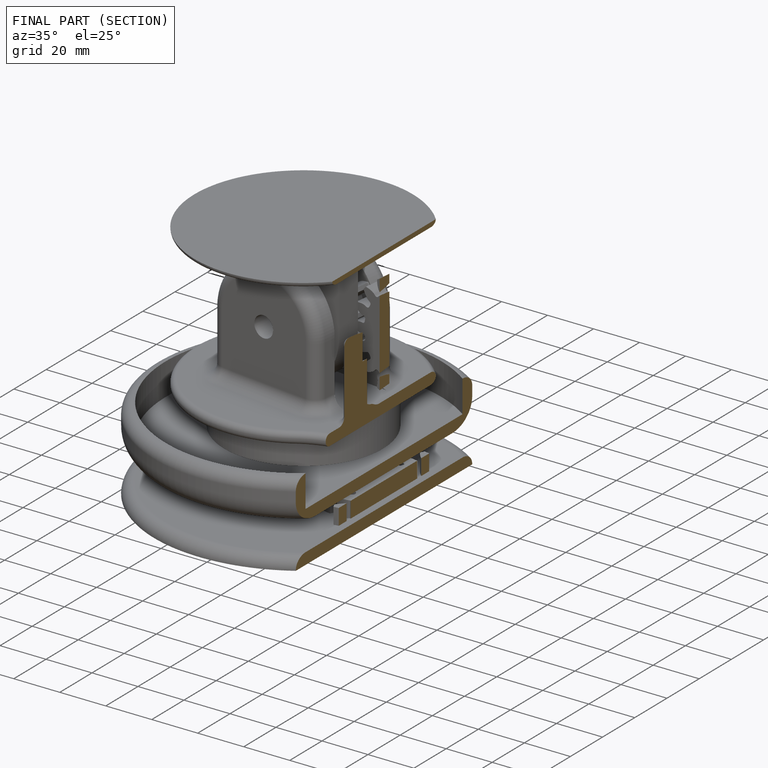
[diagram: finished part — half-section view (interior)]
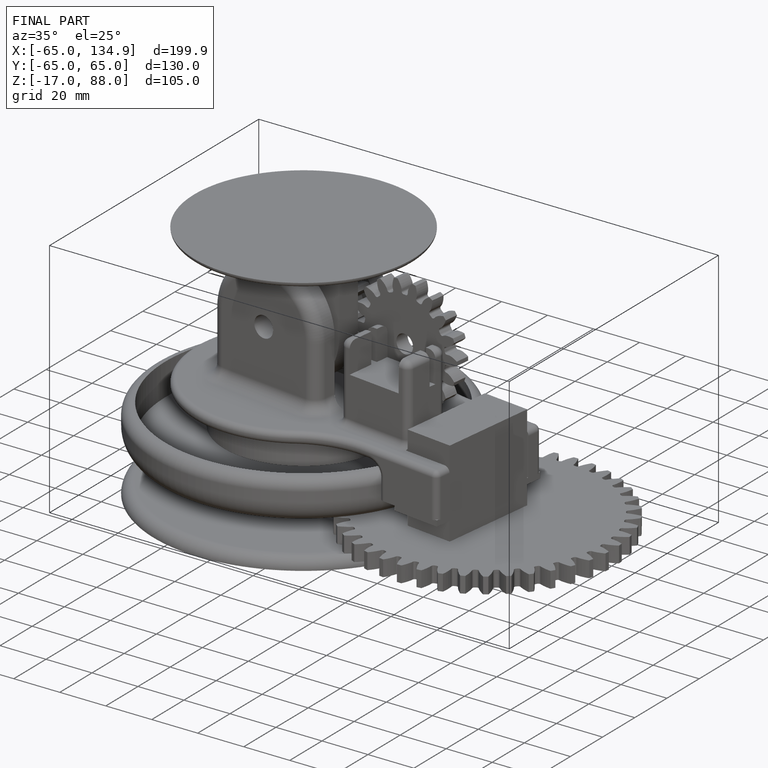
[diagram: finished part — iso view with bounding-box wireframe]
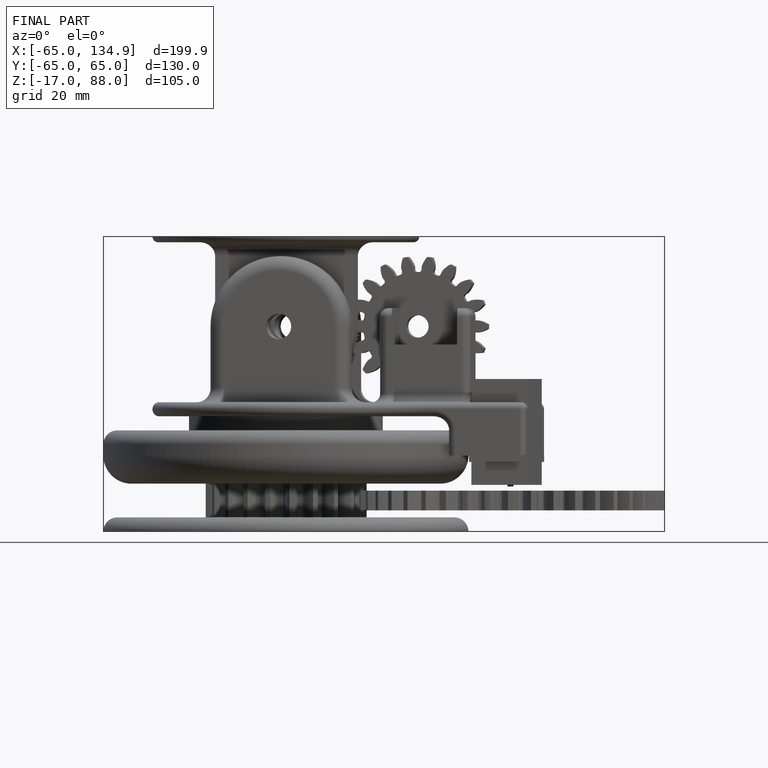
[diagram: finished part — front view with bounding-box wireframe]
